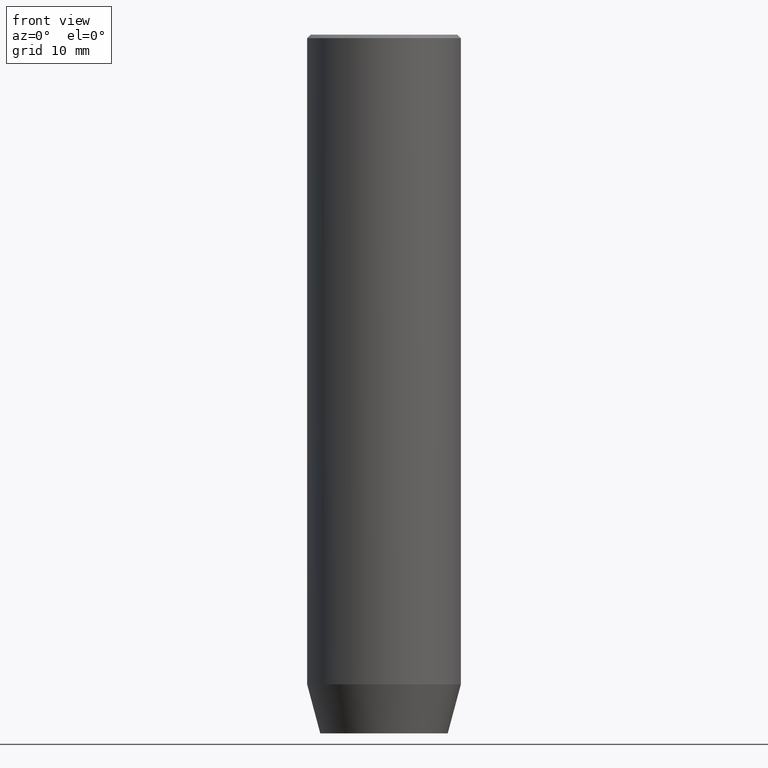
[diagram: clean part render]
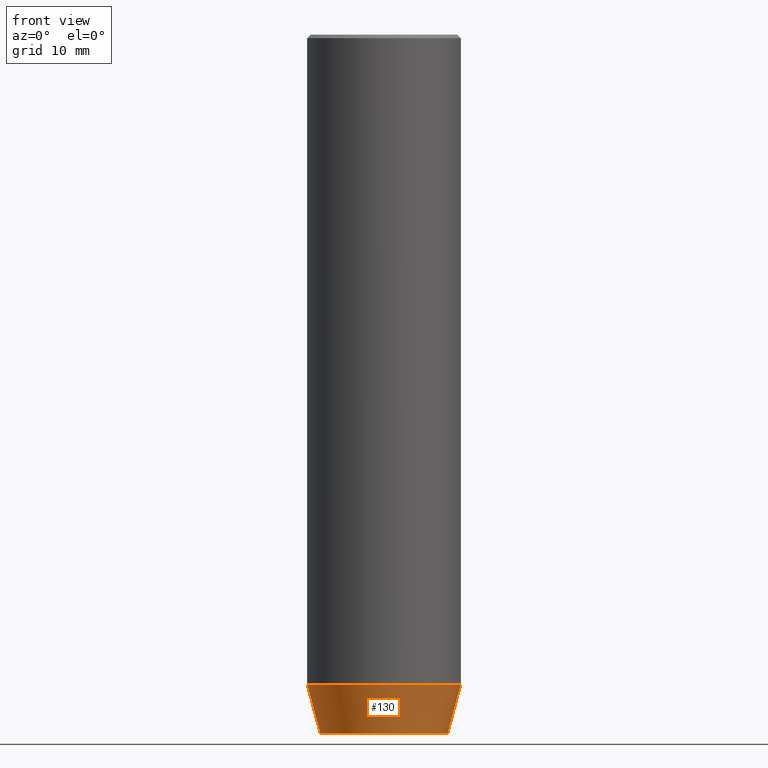
[diagram: same view with one face highlighted and labeled with its STEP entity id]
A machine part, front view. The second image highlights one B-rep face of the part: STEP entity #130.
In plain terms, the highlighted conical surface has half-angle 15 deg.
Its self-contained STEP definition (entity closure, byte-faithful):
#15 = DIRECTION ( 'NONE',  ( -0.000000000000000000, -0.000000000000000000, 1.000000000000000000 ) ) ;
#20 = CONICAL_SURFACE ( 'NONE', #95, 11.00000000000000000, 0.2617993877991500740 ) ;
#38 = DIRECTION ( 'NONE',  ( 1.000000000000000000, 0.000000000000000000, 0.000000000000000000 ) ) ;
#44 = CARTESIAN_POINT ( 'NONE',  ( -9.124355652982133691, 1.232261386766375507E-15, -100.0000000000000000 ) ) ;
#67 = CARTESIAN_POINT ( 'NONE',  ( 0.000000000000000000, 0.000000000000000000, -100.0000000000000000 ) ) ;
#70 = VECTOR ( 'NONE', #381, 1000.000000000000000 ) ;
#81 = ORIENTED_EDGE ( 'NONE', *, *, #440, .T. ) ;
#95 = AXIS2_PLACEMENT_3D ( 'NONE', #185, #575, #38 ) ;
#99 = CIRCLE ( 'NONE', #584, 9.124355652982133691 ) ;
#102 = DIRECTION ( 'NONE',  ( 0.2588190451025213501, 0.000000000000000000, 0.9659258262890680902 ) ) ;
#106 = VERTEX_POINT ( 'NONE', #366 ) ;
#123 = ORIENTED_EDGE ( 'NONE', *, *, #462, .F. ) ;
#130 = ADVANCED_FACE ( 'NONE', ( #453 ), #20, .T. ) ;
#165 = DIRECTION ( 'NONE',  ( 1.000000000000000000, 0.000000000000000000, 0.000000000000000000 ) ) ;
#167 = VERTEX_POINT ( 'NONE', #44 ) ;
#185 = CARTESIAN_POINT ( 'NONE',  ( 0.000000000000000000, 0.000000000000000000, -93.00000000000000000 ) ) ;
#201 = VERTEX_POINT ( 'NONE', #447 ) ;
#242 = LINE ( 'NONE', #417, #70 ) ;
#258 = CARTESIAN_POINT ( 'NONE',  ( 0.000000000000000000, 0.000000000000000000, -93.00000000000000000 ) ) ;
#292 = CARTESIAN_POINT ( 'NONE',  ( 11.00000000000000000, 0.000000000000000000, -93.00000000000000000 ) ) ;
#366 = CARTESIAN_POINT ( 'NONE',  ( 11.00000000000000000, 0.000000000000000000, -93.00000000000000000 ) ) ;
#380 = ORIENTED_EDGE ( 'NONE', *, *, #435, .F. ) ;
#381 = DIRECTION ( 'NONE',  ( -0.2588190451025213501, 3.169619151431772337E-17, 0.9659258262890680902 ) ) ;
#384 = CIRCLE ( 'NONE', #520, 11.00000000000000000 ) ;
#397 = DIRECTION ( 'NONE',  ( 1.000000000000000000, 0.000000000000000000, 0.000000000000000000 ) ) ;
#417 = CARTESIAN_POINT ( 'NONE',  ( -11.00000000000000000, 1.347111479062088405E-15, -93.00000000000000000 ) ) ;
#426 = DIRECTION ( 'NONE',  ( -0.000000000000000000, -0.000000000000000000, 1.000000000000000000 ) ) ;
#427 = ORIENTED_EDGE ( 'NONE', *, *, #587, .T. ) ;
#429 = VERTEX_POINT ( 'NONE', #503 ) ;
#435 = EDGE_CURVE ( 'NONE', #167, #429, #242, .T. ) ;
#440 = EDGE_CURVE ( 'NONE', #201, #106, #545, .T. ) ;
#447 = CARTESIAN_POINT ( 'NONE',  ( 9.124355652982133691, 0.000000000000000000, -100.0000000000000000 ) ) ;
#453 = FACE_OUTER_BOUND ( 'NONE', #467, .T. ) ;
#462 = EDGE_CURVE ( 'NONE', #429, #106, #384, .T. ) ;
#467 = EDGE_LOOP ( 'NONE', ( #380, #427, #81, #123 ) ) ;
#474 = VECTOR ( 'NONE', #102, 1000.000000000000000 ) ;
#503 = CARTESIAN_POINT ( 'NONE',  ( -11.00000000000000000, 1.347111479062088405E-15, -93.00000000000000000 ) ) ;
#520 = AXIS2_PLACEMENT_3D ( 'NONE', #258, #426, #397 ) ;
#545 = LINE ( 'NONE', #292, #474 ) ;
#575 = DIRECTION ( 'NONE',  ( -0.000000000000000000, -0.000000000000000000, 1.000000000000000000 ) ) ;
#584 = AXIS2_PLACEMENT_3D ( 'NONE', #67, #15, #165 ) ;
#587 = EDGE_CURVE ( 'NONE', #167, #201, #99, .T. ) ;